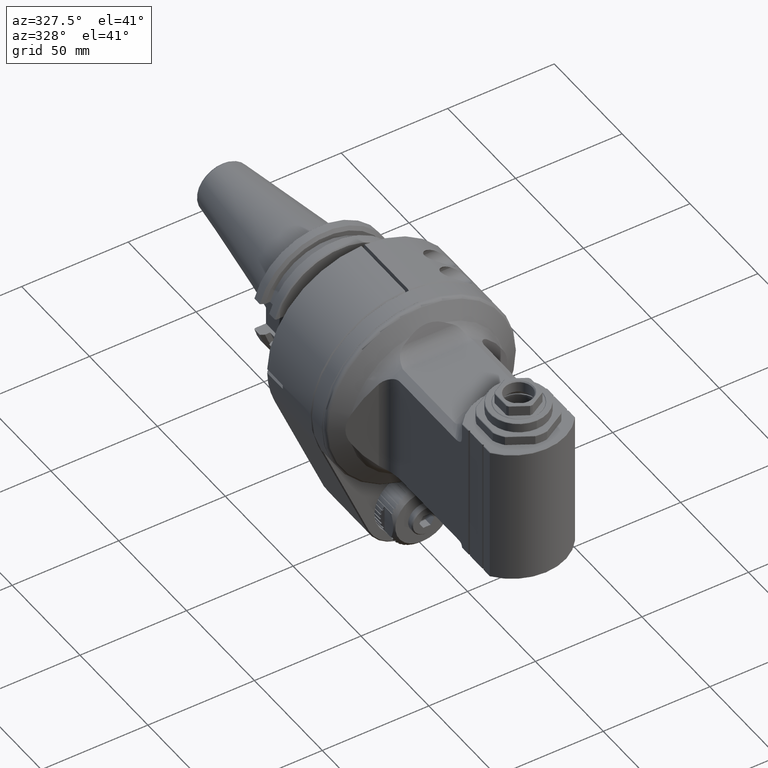
[diagram: clean part render]
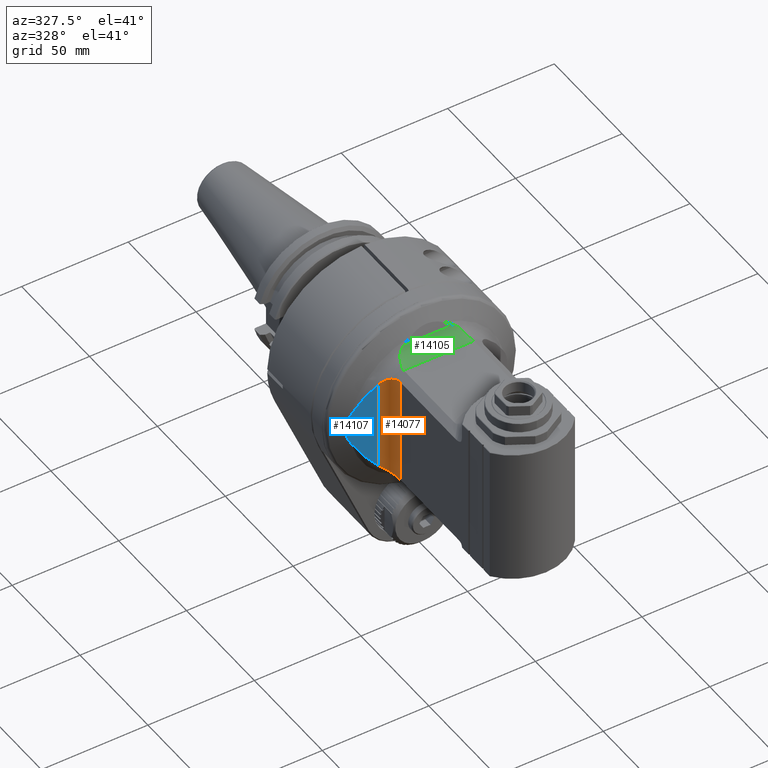
[diagram: same view with three faces highlighted in distinct colors, each labeled with its STEP entity id]
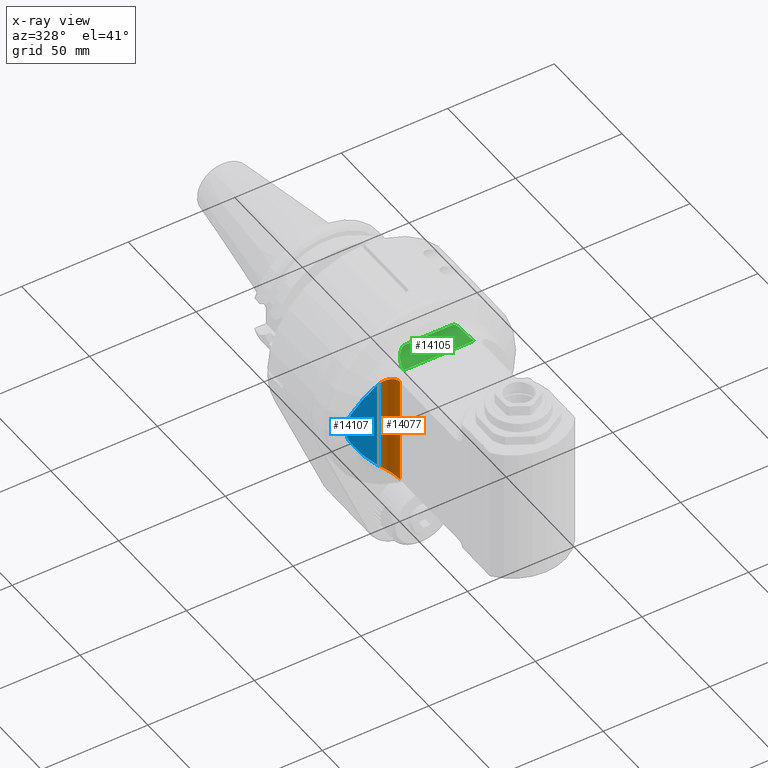
[diagram: x-ray of the same camera — body ghosted, the three highlighted faces saturated]
A machine part, auxiliary view with three faces highlighted in distinct colors.
The next image is the same camera in x-ray (body ghosted, the three faces saturated) — at least one of them is partly hidden behind the body in this view.
Their STEP definitions:

[orange] entity #14077 — the highlighted cylindrical surface (edge-blend (fillet) strip) has radius 8 mm, axis along (0, -0, 1).
#150=B_SPLINE_CURVE_WITH_KNOTS('',3,(#23595,#23596,#23597,#23598,#23599,
#23600,#23601,#23602,#23603,#23604,#23605,#23606,#23607,#23608,#23609,#23610,
#23611,#23612,#23613,#23614,#23615,#23616,#23617,#23618,#23619,#23620,#23621,
#23622,#23623,#23624,#23625,#23626,#23627,#23628,#23629,#23630,#23631,#23632,
#23633,#23634,#23635,#23636,#23637,#23638,#23639,#23640,#23641,#23642,#23643),
 .UNSPECIFIED.,.F.,.F.,(4,3,3,3,3,3,3,3,3,3,3,3,3,3,3,3,4),(0.,0.09090909090909,
0.158011374373022,0.1818181818182,0.2727272727273,0.34563385837579,0.3636363636364,
0.434906168782884,0.4545454545455,0.536772816181466,0.5454545454545,0.6363636363636,
0.7272727272727,0.80787852086545,0.8181818181818,0.9090909090909,1.),
 .UNSPECIFIED.);
#153=B_SPLINE_CURVE_WITH_KNOTS('',3,(#23671,#23672,#23673,#23674,#23675,
#23676,#23677,#23678,#23679,#23680,#23681,#23682,#23683,#23684,#23685,#23686,
#23687,#23688,#23689,#23690,#23691,#23692,#23693,#23694,#23695,#23696,#23697,
#23698,#23699,#23700,#23701,#23702,#23703,#23704),.UNSPECIFIED.,.F.,.F.,
(4,3,3,3,3,3,3,3,3,3,3,4),(0.,0.09090909090909,0.1818181818182,0.2727272727273,
0.3636363636364,0.4545454545455,0.5454545454545,0.6363636363636,0.7272727272727,
0.8181818181818,0.9090909090909,1.),.UNSPECIFIED.);
#154=B_SPLINE_CURVE_WITH_KNOTS('',3,(#23706,#23707,#23708,#23709,#23710,
#23711,#23712,#23713),.UNSPECIFIED.,.F.,.F.,(4,2,2,4),(5.77990102573862,
5.85723860387527,6.02422210949548,6.14552378266582),.UNSPECIFIED.);
#155=B_SPLINE_CURVE_WITH_KNOTS('',3,(#23716,#23717,#23718,#23719,#23720,
#23721,#23722,#23723,#23724,#23725,#23726,#23727,#23728,#23729,#23730,#23731,
#23732,#23733,#23734,#23735,#23736,#23737,#23738,#23739,#23740,#23741,#23742,
#23743,#23744,#23745,#23746,#23747,#23748,#23749),.UNSPECIFIED.,.F.,.F.,
(4,3,3,3,3,3,3,3,3,3,3,4),(0.,0.09090909090909,0.1818181818182,0.2727272727273,
0.3636363636364,0.4545454545455,0.5454545454545,0.6363636363636,0.7272727272727,
0.8181818181818,0.9090909090909,1.),.UNSPECIFIED.);
#1341=CYLINDRICAL_SURFACE('',#15350,8.);
#1846=FACE_OUTER_BOUND('',#2692,.T.);
#2692=EDGE_LOOP('',(#11347,#11348,#11349,#11350,#11351,#11352));
#3778=LINE('',#23714,#4977);
#3779=LINE('',#23750,#4978);
#4977=VECTOR('',#18282,42.91752345944);
#4978=VECTOR('',#18283,51.2347538298);
#6289=VERTEX_POINT('',#23593);
#6290=VERTEX_POINT('',#23594);
#6292=VERTEX_POINT('',#23669);
#6293=VERTEX_POINT('',#23670);
#6294=VERTEX_POINT('',#23705);
#6295=VERTEX_POINT('',#23715);
#8072=EDGE_CURVE('',#6289,#6290,#150,.T.);
#8076=EDGE_CURVE('',#6292,#6293,#153,.T.);
#8077=EDGE_CURVE('',#6294,#6292,#154,.T.);
#8078=EDGE_CURVE('',#6294,#6290,#3778,.T.);
#8079=EDGE_CURVE('',#6295,#6289,#155,.T.);
#8080=EDGE_CURVE('',#6293,#6295,#3779,.T.);
#11347=ORIENTED_EDGE('',*,*,#8076,.F.);
#11348=ORIENTED_EDGE('',*,*,#8077,.F.);
#11349=ORIENTED_EDGE('',*,*,#8078,.T.);
#11350=ORIENTED_EDGE('',*,*,#8072,.F.);
#11351=ORIENTED_EDGE('',*,*,#8079,.F.);
#11352=ORIENTED_EDGE('',*,*,#8080,.F.);
#14077=ADVANCED_FACE('',(#1846),#1341,.F.);
#15350=AXIS2_PLACEMENT_3D('',#23668,#18280,#18281);
#18280=DIRECTION('center_axis',(0.,0.,1.));
#18281=DIRECTION('ref_axis',(-1.,0.,0.));
#18282=DIRECTION('',(0.,0.,-1.));
#18283=DIRECTION('',(0.,0.,-1.));
#23593=CARTESIAN_POINT('',(-21.29591782771,3.164319481613,-24.55063917448));
#23594=CARTESIAN_POINT('',(-25.26383885339,6.316624803955,-21.45876172972));
#23595=CARTESIAN_POINT('Ctrl Pts',(-21.2959178277097,3.16431948161323,-24.55063917448));
#23596=CARTESIAN_POINT('Ctrl Pts',(-21.3885787787312,3.30662717826021,-24.47026244845));
#23597=CARTESIAN_POINT('Ctrl Pts',(-21.4855473646008,3.44563371220442,-24.39025980245));
#23598=CARTESIAN_POINT('Ctrl Pts',(-21.5864912243282,3.58101913463416,-24.3100678831517));
#23599=CARTESIAN_POINT('Ctrl Pts',(-21.6610004227112,3.68095051555457,-24.2508762132487));
#23600=CARTESIAN_POINT('Ctrl Pts',(-21.7376775557457,3.77890833619645,-24.1915814218225));
#23601=CARTESIAN_POINT('Ctrl Pts',(-21.8162420609083,3.87462693675707,-24.1320592071199));
#23602=CARTESIAN_POINT('Ctrl Pts',(-21.8441154796637,3.90858635177002,-24.1109416857631));
#23603=CARTESIAN_POINT('Ctrl Pts',(-21.8722261204227,3.94226424579371,-24.0897955382769));
#23604=CARTESIAN_POINT('Ctrl Pts',(-21.9005603563175,3.9756498840992,-24.0686152136917));
#23605=CARTESIAN_POINT('Ctrl Pts',(-22.0087579646167,4.10313686591147,-23.9877356561267));
#23606=CARTESIAN_POINT('Ctrl Pts',(-22.1202156231643,4.22636093635327,-23.9063577335933));
#23607=CARTESIAN_POINT('Ctrl Pts',(-22.2345543195979,4.34522088126162,-23.823911241235));
#23608=CARTESIAN_POINT('Ctrl Pts',(-22.3262508032071,4.4405432815516,-23.7577914264131));
#23609=CARTESIAN_POINT('Ctrl Pts',(-22.4198028601597,4.53305696653949,-23.6909843504384));
#23610=CARTESIAN_POINT('Ctrl Pts',(-22.5148480285161,4.62258002550177,-23.623326734359));
#23611=CARTESIAN_POINT('Ctrl Pts',(-22.5383171174621,4.64468556405606,-23.6066203342642));
#23612=CARTESIAN_POINT('Ctrl Pts',(-22.5618771181497,4.66660897189089,-23.5898620748075));
#23613=CARTESIAN_POINT('Ctrl Pts',(-22.5855223353371,4.68834793591107,-23.5730494977233));
#23614=CARTESIAN_POINT('Ctrl Pts',(-22.6791309746455,4.77440994269153,-23.5064904785506));
#23615=CARTESIAN_POINT('Ctrl Pts',(-22.7740777010831,4.85757815546699,-23.4390801526978));
#23616=CARTESIAN_POINT('Ctrl Pts',(-22.8699700946559,4.93771505075312,-23.3707338506239));
#23617=CARTESIAN_POINT('Ctrl Pts',(-22.89639444247,4.95979777405253,-23.3519001726801));
#23618=CARTESIAN_POINT('Ctrl Pts',(-22.9228904720302,4.98165059324068,-23.3329954216702));
#23619=CARTESIAN_POINT('Ctrl Pts',(-22.9494496996738,5.00327126744983,-23.3140178259049));
#23620=CARTESIAN_POINT('Ctrl Pts',(-23.0606500377421,5.0937944676567,-23.2345608818573));
#23621=CARTESIAN_POINT('Ctrl Pts',(-23.1729539773064,5.18025013339721,-23.1538269709638));
#23622=CARTESIAN_POINT('Ctrl Pts',(-23.286233266425,5.26286006998208,-23.0713980542747));
#23623=CARTESIAN_POINT('Ctrl Pts',(-23.2981935202967,5.27158219228326,-23.0626950444161));
#23624=CARTESIAN_POINT('Ctrl Pts',(-23.3101646911905,5.28026142623411,-23.0539731393809));
#23625=CARTESIAN_POINT('Ctrl Pts',(-23.3221466589512,5.28889801987888,-23.0452318471451));
#23626=CARTESIAN_POINT('Ctrl Pts',(-23.4476135748355,5.37933448156819,-22.9536990539034));
#23627=CARTESIAN_POINT('Ctrl Pts',(-23.5742611388015,5.46509379038299,-22.8600404858467));
#23628=CARTESIAN_POINT('Ctrl Pts',(-23.7017607197803,5.54631579529057,-22.7638596247533));
#23629=CARTESIAN_POINT('Ctrl Pts',(-23.8292603007592,5.62753780019815,-22.66767876366));
#23630=CARTESIAN_POINT('Ctrl Pts',(-23.9576110167298,5.7042243189988,-22.56897560953));
#23631=CARTESIAN_POINT('Ctrl Pts',(-24.0866054118824,5.77657212484399,-22.4673286908383));
#23632=CARTESIAN_POINT('Ctrl Pts',(-24.2009800633756,5.84072030019728,-22.3772020548169));
#23633=CARTESIAN_POINT('Ctrl Pts',(-24.3158597408094,5.90145968202947,-22.2847611118469));
#23634=CARTESIAN_POINT('Ctrl Pts',(-24.4312822916789,5.95898983693229,-22.1895778691489));
#23635=CARTESIAN_POINT('Ctrl Pts',(-24.4460359812787,5.96634353031089,-22.177411234403));
#23636=CARTESIAN_POINT('Ctrl Pts',(-24.4607985895845,5.97364473903905,-22.1651997937917));
#23637=CARTESIAN_POINT('Ctrl Pts',(-24.4755702374358,5.98089383576297,-22.1529426534617));
#23638=CARTESIAN_POINT('Ctrl Pts',(-24.6059049289577,6.04485479630307,-22.04479421803));
#23639=CARTESIAN_POINT('Ctrl Pts',(-24.7369415073962,6.10475755767645,-21.93308803042));
#23640=CARTESIAN_POINT('Ctrl Pts',(-24.8684344592192,6.1606935301048,-21.8174679522575));
#23641=CARTESIAN_POINT('Ctrl Pts',(-24.9999274110422,6.21662950253315,-21.701847874095));
#23642=CARTESIAN_POINT('Ctrl Pts',(-25.1318783692004,6.26859511560812,-21.58231390538));
#23643=CARTESIAN_POINT('Ctrl Pts',(-25.2638388533908,6.31662480395286,-21.45876172972));
#23668=CARTESIAN_POINT('Origin',(-28.,-1.200916162333,50.));
#23669=CARTESIAN_POINT('',(-21.29591782771,3.164319481613,24.55063917448));
#23670=CARTESIAN_POINT('',(-20.,-1.200916162333,25.6173769149));
#23671=CARTESIAN_POINT('Ctrl Pts',(-21.2959178277097,3.16431948161323,24.55063917448));
#23672=CARTESIAN_POINT('Ctrl Pts',(-21.2174779480768,3.04385235416906,24.61868014153));
#23673=CARTESIAN_POINT('Ctrl Pts',(-21.1426203401466,2.92178838909894,24.68295765419));
#23674=CARTESIAN_POINT('Ctrl Pts',(-21.0713110526058,2.79824243295394,24.7436830428383));
#23675=CARTESIAN_POINT('Ctrl Pts',(-21.000001765065,2.6746964768089,24.8044084314867));
#23676=CARTESIAN_POINT('Ctrl Pts',(-20.932241961655,2.54966783419842,24.8615816961233));
#23677=CARTESIAN_POINT('Ctrl Pts',(-20.8680393825773,2.42332689678033,24.915355352215));
#23678=CARTESIAN_POINT('Ctrl Pts',(-20.8038368034995,2.29698595936227,24.9691290083067));
#23679=CARTESIAN_POINT('Ctrl Pts',(-20.743190817781,2.16933304551834,25.0195030558533));
#23680=CARTESIAN_POINT('Ctrl Pts',(-20.686092215501,2.0404960175424,25.06662300454));
#23681=CARTESIAN_POINT('Ctrl Pts',(-20.6289936132209,1.91165898956645,25.1137429532267));
#23682=CARTESIAN_POINT('Ctrl Pts',(-20.5754432796288,1.78163746306457,25.1576088030533));
#23683=CARTESIAN_POINT('Ctrl Pts',(-20.525454394498,1.65060413239928,25.1983277599783));
#23684=CARTESIAN_POINT('Ctrl Pts',(-20.4754655093672,1.51957080173399,25.2390467169033));
#23685=CARTESIAN_POINT('Ctrl Pts',(-20.4290375929834,1.38752583250014,25.2766187809267));
#23686=CARTESIAN_POINT('Ctrl Pts',(-20.3861715233093,1.25461146478373,25.3111440006584));
#23687=CARTESIAN_POINT('Ctrl Pts',(-20.3433054536352,1.12169709706745,25.34566922039));
#23688=CARTESIAN_POINT('Ctrl Pts',(-20.3040012382744,0.987913336088321,
25.37714759583));
#23689=CARTESIAN_POINT('Ctrl Pts',(-20.2682608854034,0.853398872859426,
25.4056607999316));
#23690=CARTESIAN_POINT('Ctrl Pts',(-20.2325205325324,0.718884409630382,
25.4341740040333));
#23691=CARTESIAN_POINT('Ctrl Pts',(-20.2003440263537,0.58363926130961,25.4597220367967));
#23692=CARTESIAN_POINT('Ctrl Pts',(-20.1717344362392,0.447797961836624,
25.4823689996383));
#23693=CARTESIAN_POINT('Ctrl Pts',(-20.1431248461247,0.311956662363631,
25.50501596248));
#23694=CARTESIAN_POINT('Ctrl Pts',(-20.1180828783036,0.175519042739162,
25.5247618554));
#23695=CARTESIAN_POINT('Ctrl Pts',(-20.0966176202456,0.0386591517916944,
25.5416514780383));
#23696=CARTESIAN_POINT('Ctrl Pts',(-20.0751523621876,-0.0982007391557727,
25.5585411006767));
#23697=CARTESIAN_POINT('Ctrl Pts',(-20.0572629252281,-0.235482740880745,
25.5725744530333));
#23698=CARTESIAN_POINT('Ctrl Pts',(-20.0429488245953,-0.373065576785849,
25.5837878824583));
#23699=CARTESIAN_POINT('Ctrl Pts',(-20.0286347239625,-0.510648412690953,
25.5950013118833));
#23700=CARTESIAN_POINT('Ctrl Pts',(-20.0178971335612,-0.648532245307341,
25.6033948183767));
#23701=CARTESIAN_POINT('Ctrl Pts',(-20.0107395361479,-0.786528372057274,
25.6089887191308));
#23702=CARTESIAN_POINT('Ctrl Pts',(-20.0035819387346,-0.924524498807206,
25.614582619885));
#23703=CARTESIAN_POINT('Ctrl Pts',(-20.,-1.062632733051,25.6173769149));
#23704=CARTESIAN_POINT('Ctrl Pts',(-20.,-1.200916162333,25.6173769149));
#23705=CARTESIAN_POINT('',(-25.26383885339,6.316624803955,21.45876172972));
#23706=CARTESIAN_POINT('Ctrl Pts',(-25.2638388533926,6.31662480395351,21.4587617297222));
#23707=CARTESIAN_POINT('Ctrl Pts',(-24.9641407802448,6.20754362606068,21.7393635265711));
#23708=CARTESIAN_POINT('Ctrl Pts',(-24.6585397129681,6.07615134584842,22.0046620437382));
#23709=CARTESIAN_POINT('Ctrl Pts',(-23.6804691676701,5.57448537496182,22.8021346501844));
#23710=CARTESIAN_POINT('Ctrl Pts',(-23.031115965667,5.12287419958919,23.2549621988927));
#23711=CARTESIAN_POINT('Ctrl Pts',(-22.007687585743,4.13304086927499,23.9850676662378));
#23712=CARTESIAN_POINT('Ctrl Pts',(-21.6241912454978,3.66847828249779,24.2658855401412));
#23713=CARTESIAN_POINT('Ctrl Pts',(-21.2959178277093,3.16431948161275,24.5506391744788));
#23714=CARTESIAN_POINT('',(-25.26383885339,6.316624803955,21.45876172972));
#23715=CARTESIAN_POINT('',(-20.,-1.200916162333,-25.6173769149));
#23716=CARTESIAN_POINT('Ctrl Pts',(-20.,-1.200916162333,-25.6173769149));
#23717=CARTESIAN_POINT('Ctrl Pts',(-20.,-1.062632734716,-25.6173769149));
#23718=CARTESIAN_POINT('Ctrl Pts',(-20.0035819386395,-0.924524502147988,
-25.614582619965));
#23719=CARTESIAN_POINT('Ctrl Pts',(-20.0107395359136,-0.786528376574853,
-25.6089887193108));
#23720=CARTESIAN_POINT('Ctrl Pts',(-20.0178971331876,-0.648532251001687,
-25.6033948186567));
#23721=CARTESIAN_POINT('Ctrl Pts',(-20.0286347234406,-0.510648419064571,
-25.5950013122833));
#23722=CARTESIAN_POINT('Ctrl Pts',(-20.0429488237545,-0.373065584867469,
-25.5837878831167));
#23723=CARTESIAN_POINT('Ctrl Pts',(-20.0572629240684,-0.235482750670378,
-25.57257445395));
#23724=CARTESIAN_POINT('Ctrl Pts',(-20.0751523605002,-0.0982007516767192,
-25.55854110199));
#23725=CARTESIAN_POINT('Ctrl Pts',(-20.0966176178027,0.0386591362163369,
-25.5416514799633));
#23726=CARTESIAN_POINT('Ctrl Pts',(-20.1180828751053,0.175519024109393,
-25.5247618579367));
#23727=CARTESIAN_POINT('Ctrl Pts',(-20.1431248419054,0.311956640360075,
-25.5050159658433));
#23728=CARTESIAN_POINT('Ctrl Pts',(-20.1717344314168,0.447797938939505,
-25.48236900346));
#23729=CARTESIAN_POINT('Ctrl Pts',(-20.2003440209282,0.583639237518935,
-25.4597220410767));
#23730=CARTESIAN_POINT('Ctrl Pts',(-20.2325205270308,0.718884387402977,
-25.4341740084033));
#23731=CARTESIAN_POINT('Ctrl Pts',(-20.2682608796381,0.853398851160623,
-25.40566080453));
#23732=CARTESIAN_POINT('Ctrl Pts',(-20.3040012322454,0.987913314918121,
-25.3771476006567));
#23733=CARTESIAN_POINT('Ctrl Pts',(-20.3433054471119,1.12169707540693,-25.3456692255833));
#23734=CARTESIAN_POINT('Ctrl Pts',(-20.3861715155726,1.25461144079466,-25.31114400689));
#23735=CARTESIAN_POINT('Ctrl Pts',(-20.4290375840334,1.38752580618253,-25.2766187881967));
#23736=CARTESIAN_POINT('Ctrl Pts',(-20.475465498364,1.5195707712844,-25.2390467258833));
#23737=CARTESIAN_POINT('Ctrl Pts',(-20.5254543828469,1.65060410185901,-25.1983277694667));
#23738=CARTESIAN_POINT('Ctrl Pts',(-20.5754432673298,1.78163743243362,-25.15760881305));
#23739=CARTESIAN_POINT('Ctrl Pts',(-20.6289936018606,1.91165896281635,-25.11374296253));
#23740=CARTESIAN_POINT('Ctrl Pts',(-20.6860922050935,2.04049599405908,-25.0666230131267));
#23741=CARTESIAN_POINT('Ctrl Pts',(-20.7431908083265,2.16933302530181,-25.0195030637233));
#23742=CARTESIAN_POINT('Ctrl Pts',(-20.803836794939,2.29698594183521,-24.9691290154366));
#23743=CARTESIAN_POINT('Ctrl Pts',(-20.8680393746855,2.42332688125058,-24.9153553588233));
#23744=CARTESIAN_POINT('Ctrl Pts',(-20.9322419544321,2.54966782066595,-24.86158170221));
#23745=CARTESIAN_POINT('Ctrl Pts',(-21.0000017582491,2.67469646459701,-24.80440843727));
#23746=CARTESIAN_POINT('Ctrl Pts',(-21.0713110469573,2.79824242316767,-24.7436830476425));
#23747=CARTESIAN_POINT('Ctrl Pts',(-21.1426203356655,2.92178838173833,-24.682957658015));
#23748=CARTESIAN_POINT('Ctrl Pts',(-21.2174779455667,3.04385235031412,-24.6186801437));
#23749=CARTESIAN_POINT('Ctrl Pts',(-21.2959178277097,3.16431948161323,-24.55063917448));
#23750=CARTESIAN_POINT('',(-20.,-1.200916162333,25.6173769149));

[blue] entity #14107 — the highlighted planar face has unit normal (-0.342, -0.9397, -0).
#151=B_SPLINE_CURVE_WITH_KNOTS('',3,(#23644,#23645,#23646,#23647,#23648,
#23649,#23650,#23651,#23652,#23653,#23654,#23655),.UNSPECIFIED.,.F.,.F.,
(4,2,2,2,2,4),(-6.58843929530839,-6.08415536583369,-5.56126288865237,-5.3175456697754,
-5.07382845089843,-4.93164835101738),.UNSPECIFIED.);
#187=B_SPLINE_CURVE_WITH_KNOTS('',3,(#24484,#24485,#24486,#24487,#24488,
#24489,#24490,#24491,#24492,#24493,#24494,#24495),.UNSPECIFIED.,.F.,.F.,
(4,2,2,2,2,4),(-7.77021479965346,-7.62803469977241,-7.38431748089545,-7.14060026201848,
-6.61770778483716,-6.11342385536246),.UNSPECIFIED.);
#262=ELLIPSE('',#15340,24.7833459541213,18.0780687327875);
#1876=FACE_OUTER_BOUND('',#2730,.T.);
#2730=EDGE_LOOP('',(#11539,#11540,#11541,#11542));
#3778=LINE('',#23714,#4977);
#4977=VECTOR('',#18282,42.91752345944);
#6280=VERTEX_POINT('',#23557);
#6281=VERTEX_POINT('',#23559);
#6290=VERTEX_POINT('',#23594);
#6294=VERTEX_POINT('',#23705);
#8062=EDGE_CURVE('',#6281,#6280,#262,.T.);
#8073=EDGE_CURVE('',#6290,#6280,#151,.T.);
#8078=EDGE_CURVE('',#6294,#6290,#3778,.T.);
#8196=EDGE_CURVE('',#6281,#6294,#187,.T.);
#11539=ORIENTED_EDGE('',*,*,#8062,.T.);
#11540=ORIENTED_EDGE('',*,*,#8073,.F.);
#11541=ORIENTED_EDGE('',*,*,#8078,.F.);
#11542=ORIENTED_EDGE('',*,*,#8196,.F.);
#13475=PLANE('',#15395);
#14107=ADVANCED_FACE('',(#1876),#13475,.T.);
#15340=AXIS2_PLACEMENT_3D('',#23560,#18259,#18260);
#15395=AXIS2_PLACEMENT_3D('',#24496,#18436,#18437);
#18259=DIRECTION('center_axis',(-0.342020143325699,-0.939692620785897,0.));
#18260=DIRECTION('ref_axis',(-0.939692620785897,0.342020143325699,1.79188561008734E-16));
#18282=DIRECTION('',(0.,0.,-1.));
#18436=DIRECTION('center_axis',(-0.342020143325699,-0.939692620785897,0.));
#18437=DIRECTION('ref_axis',(-0.939692620785897,0.342020143325699,0.));
#23557=CARTESIAN_POINT('',(-35.63803309361,10.09252271189,-7.885467469902));
#23559=CARTESIAN_POINT('',(-35.63803309361,10.09252271189,7.885467469902));
#23560=CARTESIAN_POINT('Origin',(-14.6815615886289,2.4649908688296,-4.44089209850063E-15));
#23594=CARTESIAN_POINT('',(-25.26383885339,6.316624803955,-21.45876172972));
#23644=CARTESIAN_POINT('Ctrl Pts',(-25.2638388533929,6.31662480395605,-21.4587617297235));
#23645=CARTESIAN_POINT('Ctrl Pts',(-26.5548059169735,6.78649838851747,-20.2500529986036));
#23646=CARTESIAN_POINT('Ctrl Pts',(-27.7817596869472,7.23307303960864,-18.9655238383126));
#23647=CARTESIAN_POINT('Ctrl Pts',(-30.0954950577248,8.07520384454067,-16.2664608279838));
#23648=CARTESIAN_POINT('Ctrl Pts',(-31.1749674035762,8.46809964714414,-14.8484036151167));
#23649=CARTESIAN_POINT('Ctrl Pts',(-32.5971713748754,8.98573955975227,-12.7894528123716));
#23650=CARTESIAN_POINT('Ctrl Pts',(-33.07943021753,9.16126742369024,-12.0581203792277));
#23651=CARTESIAN_POINT('Ctrl Pts',(-34.0147876536522,9.5017096888383,-10.5743221602684));
#23652=CARTESIAN_POINT('Ctrl Pts',(-34.4678654452573,9.66661651878964,-9.82184152433718));
#23653=CARTESIAN_POINT('Ctrl Pts',(-35.1180613862354,9.90326848774639,-8.73746542016057));
#23654=CARTESIAN_POINT('Ctrl Pts',(-35.3742235240165,9.99650388104471,-8.3079354683171));
#23655=CARTESIAN_POINT('Ctrl Pts',(-35.6380330936163,10.0925227118936,-7.88546746990675));
#23705=CARTESIAN_POINT('',(-25.26383885339,6.316624803955,21.45876172972));
#23714=CARTESIAN_POINT('',(-25.26383885339,6.316624803955,21.45876172972));
#24484=CARTESIAN_POINT('Ctrl Pts',(-35.6380330936163,10.0925227118936,7.88546746990675));
#24485=CARTESIAN_POINT('Ctrl Pts',(-35.3742235240165,9.99650388104472,8.3079354683171));
#24486=CARTESIAN_POINT('Ctrl Pts',(-35.1180613862354,9.90326848774639,8.73746542016056));
#24487=CARTESIAN_POINT('Ctrl Pts',(-34.4678654452573,9.66661651878964,9.82184152433718));
#24488=CARTESIAN_POINT('Ctrl Pts',(-34.0147876536522,9.5017096888383,10.5743221602684));
#24489=CARTESIAN_POINT('Ctrl Pts',(-33.07943021753,9.16126742369024,12.0581203792277));
#24490=CARTESIAN_POINT('Ctrl Pts',(-32.5971713748754,8.98573955975227,12.7894528123716));
#24491=CARTESIAN_POINT('Ctrl Pts',(-31.1749674035762,8.46809964714414,14.8484036151167));
#24492=CARTESIAN_POINT('Ctrl Pts',(-30.0954950577248,8.07520384454068,16.2664608279838));
#24493=CARTESIAN_POINT('Ctrl Pts',(-27.7817596869472,7.23307303960865,18.9655238383126));
#24494=CARTESIAN_POINT('Ctrl Pts',(-26.5548059169735,6.78649838851748,20.2500529986036));
#24495=CARTESIAN_POINT('Ctrl Pts',(-25.2638388533929,6.31662480395605,21.4587617297235));
#24496=CARTESIAN_POINT('Origin',(-25.26383885339,6.316624803955,50.));

[green] entity #14105 — the highlighted cylindrical surface (edge-blend (fillet) strip) has radius 8 mm, axis along (-1, -0, 0).
#156=B_SPLINE_CURVE_WITH_KNOTS('',3,(#23756,#23757,#23758,#23759,#23760,
#23761,#23762,#23763,#23764,#23765,#23766,#23767,#23768,#23769,#23770,#23771),
 .UNSPECIFIED.,.F.,.F.,(4,3,3,3,3,4),(0.,0.2,0.4,0.6,0.8,1.),
 .UNSPECIFIED.);
#164=B_SPLINE_CURVE_WITH_KNOTS('',3,(#23940,#23941,#23942,#23943,#23944,
#23945,#23946,#23947,#23948,#23949,#23950,#23951,#23952,#23953,#23954,#23955),
 .UNSPECIFIED.,.F.,.F.,(4,3,3,3,3,4),(0.,0.2,0.4,0.6,0.8,1.),
 .UNSPECIFIED.);
#182=B_SPLINE_CURVE_WITH_KNOTS('',3,(#24432,#24433,#24434,#24435,#24436,
#24437,#24438,#24439,#24440,#24441),.UNSPECIFIED.,.F.,.F.,(4,2,2,2,4),(5.6354562203379,
5.80336755859529,5.99838184177458,6.21920689090531,6.46616361267621),
 .UNSPECIFIED.);
#185=B_SPLINE_CURVE_WITH_KNOTS('',3,(#24465,#24466,#24467,#24468,#24469,
#24470,#24471,#24472,#24473,#24474),.UNSPECIFIED.,.F.,.F.,(4,2,2,2,4),(2.8466031866298,
3.16830171278923,3.45420217445259,3.69898153520424,3.75126413835018),
 .UNSPECIFIED.);
#1351=CYLINDRICAL_SURFACE('',#15393,8.);
#1874=FACE_OUTER_BOUND('',#2728,.T.);
#2728=EDGE_LOOP('',(#11527,#11528,#11529,#11530,#11531,#11532));
#3783=LINE('',#23814,#4982);
#3843=LINE('',#24464,#5042);
#4982=VECTOR('',#18295,33.);
#5042=VECTOR('',#18433,23.52356178766);
#6297=VERTEX_POINT('',#23753);
#6298=VERTEX_POINT('',#23755);
#6302=VERTEX_POINT('',#23812);
#6309=VERTEX_POINT('',#23938);
#6378=VERTEX_POINT('',#24431);
#6379=VERTEX_POINT('',#24463);
#8082=EDGE_CURVE('',#6297,#6298,#156,.T.);
#8089=EDGE_CURVE('',#6302,#6297,#3783,.T.);
#8098=EDGE_CURVE('',#6309,#6302,#164,.T.);
#8190=EDGE_CURVE('',#6378,#6309,#182,.T.);
#8193=EDGE_CURVE('',#6378,#6379,#3843,.T.);
#8194=EDGE_CURVE('',#6298,#6379,#185,.T.);
#11527=ORIENTED_EDGE('',*,*,#8190,.F.);
#11528=ORIENTED_EDGE('',*,*,#8193,.T.);
#11529=ORIENTED_EDGE('',*,*,#8194,.F.);
#11530=ORIENTED_EDGE('',*,*,#8082,.F.);
#11531=ORIENTED_EDGE('',*,*,#8089,.F.);
#11532=ORIENTED_EDGE('',*,*,#8098,.F.);
#14105=ADVANCED_FACE('',(#1874),#1351,.F.);
#15393=AXIS2_PLACEMENT_3D('',#24462,#18431,#18432);
#18295=DIRECTION('',(-1.,0.,0.));
#18431=DIRECTION('center_axis',(-1.,0.,0.));
#18432=DIRECTION('ref_axis',(0.,0.,-1.));
#18433=DIRECTION('',(-1.,0.,0.));
#23753=CARTESIAN_POINT('',(-16.5,1.710845711797,28.));
#23755=CARTESIAN_POINT('',(-16.27194442377,3.164319481613,28.13314459263));
#23756=CARTESIAN_POINT('Ctrl Pts',(-16.5,1.710845711797,28.));
#23757=CARTESIAN_POINT('Ctrl Pts',(-16.5,1.807379172736,28.));
#23758=CARTESIAN_POINT('Ctrl Pts',(-16.4970346639,1.90395977754614,28.0017472394185));
#23759=CARTESIAN_POINT('Ctrl Pts',(-16.4910928525217,2.00054143518085,28.0052469464121));
#23760=CARTESIAN_POINT('Ctrl Pts',(-16.4851510411433,2.09712309281555,28.0087466534057));
#23761=CARTESIAN_POINT('Ctrl Pts',(-16.4762327544867,2.19370584700611,28.0139965817273));
#23762=CARTESIAN_POINT('Ctrl Pts',(-16.4642736611517,2.29042784863713,28.0210223369998));
#23763=CARTESIAN_POINT('Ctrl Pts',(-16.4523145678167,2.38714985026816,28.0280480922723));
#23764=CARTESIAN_POINT('Ctrl Pts',(-16.4373146678033,2.48401093900928,28.0368519822539));
#23765=CARTESIAN_POINT('Ctrl Pts',(-16.4191974140033,2.58095583215935,28.0474589986318));
#23766=CARTESIAN_POINT('Ctrl Pts',(-16.4010801602033,2.67790072530943,28.0580660150096));
#23767=CARTESIAN_POINT('Ctrl Pts',(-16.3798455526167,2.77492965745369,28.0704740535528));
#23768=CARTESIAN_POINT('Ctrl Pts',(-16.3553491015658,2.87215565512648,28.0847388409779));
#23769=CARTESIAN_POINT('Ctrl Pts',(-16.330852650515,2.96938165279928,28.099003628403));
#23770=CARTESIAN_POINT('Ctrl Pts',(-16.303094356,3.06680429653024,28.1151277668042));
#23771=CARTESIAN_POINT('Ctrl Pts',(-16.27194442377,3.16431948161289,28.1331445926306));
#23812=CARTESIAN_POINT('',(16.5,1.710845711797,28.));
#23814=CARTESIAN_POINT('',(16.5,1.710845711797,28.));
#23938=CARTESIAN_POINT('',(16.27194442377,3.164319481613,28.13314459263));
#23940=CARTESIAN_POINT('Ctrl Pts',(16.27194442377,3.16431948161289,28.1331445926306));
#23941=CARTESIAN_POINT('Ctrl Pts',(16.303094356,3.06680429653024,28.1151277668042));
#23942=CARTESIAN_POINT('Ctrl Pts',(16.330852650515,2.96938165279928,28.099003628403));
#23943=CARTESIAN_POINT('Ctrl Pts',(16.3553491015658,2.87215565512648,28.0847388409779));
#23944=CARTESIAN_POINT('Ctrl Pts',(16.3798455526167,2.77492965745369,28.0704740535528));
#23945=CARTESIAN_POINT('Ctrl Pts',(16.4010801602033,2.67790072530943,28.0580660150096));
#23946=CARTESIAN_POINT('Ctrl Pts',(16.4191974140033,2.58095583215935,28.0474589986318));
#23947=CARTESIAN_POINT('Ctrl Pts',(16.4373146678033,2.48401093900928,28.0368519822539));
#23948=CARTESIAN_POINT('Ctrl Pts',(16.4523145678167,2.38714985026816,28.0280480922723));
#23949=CARTESIAN_POINT('Ctrl Pts',(16.4642736611517,2.29042784863713,28.0210223369998));
#23950=CARTESIAN_POINT('Ctrl Pts',(16.4762327544867,2.19370584700611,28.0139965817273));
#23951=CARTESIAN_POINT('Ctrl Pts',(16.4851510411433,2.09712309281555,28.0087466534057));
#23952=CARTESIAN_POINT('Ctrl Pts',(16.4910928525217,2.00054143518085,28.0052469464121));
#23953=CARTESIAN_POINT('Ctrl Pts',(16.4970346639,1.90395977754614,28.0017472394185));
#23954=CARTESIAN_POINT('Ctrl Pts',(16.5,1.807379172736,28.));
#23955=CARTESIAN_POINT('Ctrl Pts',(16.5,1.710845711797,28.));
#24431=CARTESIAN_POINT('',(11.76178089383,9.228386678084,33.26383885339));
#24432=CARTESIAN_POINT('Ctrl Pts',(11.7617808938319,9.2283866780837,33.2638388533931));
#24433=CARTESIAN_POINT('Ctrl Pts',(12.2863738843327,9.10593518680077,32.9274061461149));
#24434=CARTESIAN_POINT('Ctrl Pts',(12.7664738057123,8.94459034652119,32.550540122846));
#24435=CARTESIAN_POINT('Ctrl Pts',(13.6974769087349,8.44828220619137,31.6512561263368));
#24436=CARTESIAN_POINT('Ctrl Pts',(14.0964569669201,8.10666181102154,31.149584193568));
#24437=CARTESIAN_POINT('Ctrl Pts',(14.8179665211437,7.17000118926196,30.1048477020237));
#24438=CARTESIAN_POINT('Ctrl Pts',(15.1124079745249,6.56296779783466,29.5845582880799));
#24439=CARTESIAN_POINT('Ctrl Pts',(15.6920687859818,5.04474018072023,28.6677528451793));
#24440=CARTESIAN_POINT('Ctrl Pts',(15.9606703920143,4.13876605800045,28.3131825449665));
#24441=CARTESIAN_POINT('Ctrl Pts',(16.2719444237666,3.16431948161185,28.1331445926304));
#24462=CARTESIAN_POINT('Origin',(40.,1.710845711797,36.));
#24463=CARTESIAN_POINT('',(-11.76178089383,9.228386678084,33.26383885339));
#24464=CARTESIAN_POINT('',(11.76178089383,9.228386678084,33.26383885339));
#24465=CARTESIAN_POINT('Ctrl Pts',(-16.2719444237666,3.16431948161185,28.1331445926304));
#24466=CARTESIAN_POINT('Ctrl Pts',(-15.9104263247419,4.29605563034863,28.3422432376874));
#24467=CARTESIAN_POINT('Ctrl Pts',(-15.609588509901,5.32454373957402,28.7844625130844));
#24468=CARTESIAN_POINT('Ctrl Pts',(-14.920306380984,6.98082778931465,29.9078655945269));
#24469=CARTESIAN_POINT('Ctrl Pts',(-14.5563025156201,7.6112715449725,30.5367701064981));
#24470=CARTESIAN_POINT('Ctrl Pts',(-13.6133133217821,8.51988080764943,31.7429780546306));
#24471=CARTESIAN_POINT('Ctrl Pts',(-13.0586417597901,8.84934751004905,32.3352365007596));
#24472=CARTESIAN_POINT('Ctrl Pts',(-12.1095638359831,9.14156259289368,33.0331532749143));
#24473=CARTESIAN_POINT('Ctrl Pts',(-11.9377468876629,9.18731236189979,33.1509880971583));
#24474=CARTESIAN_POINT('Ctrl Pts',(-11.7617808938319,9.2283866780837,33.2638388533931));